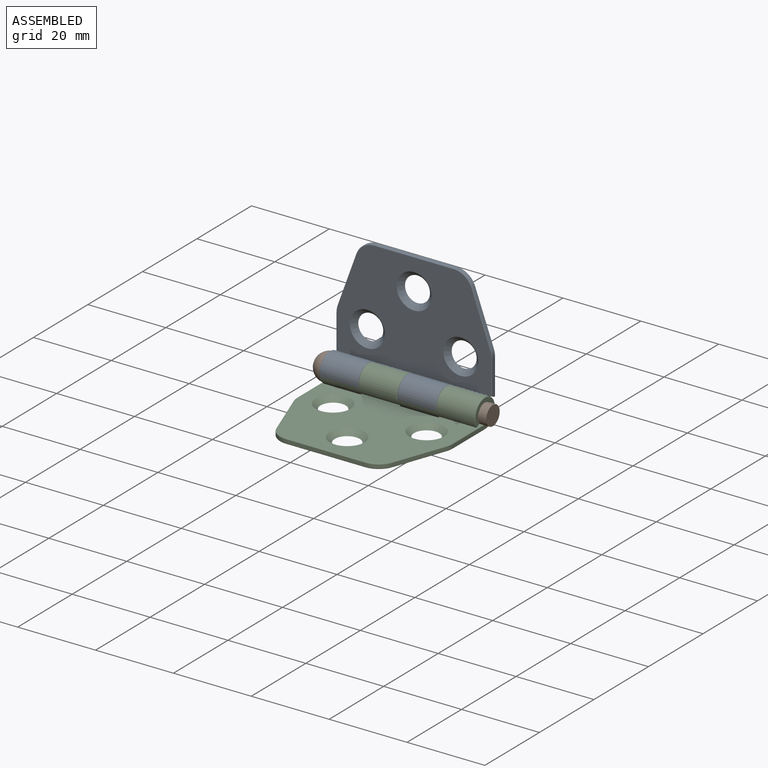
[diagram: assembled view]
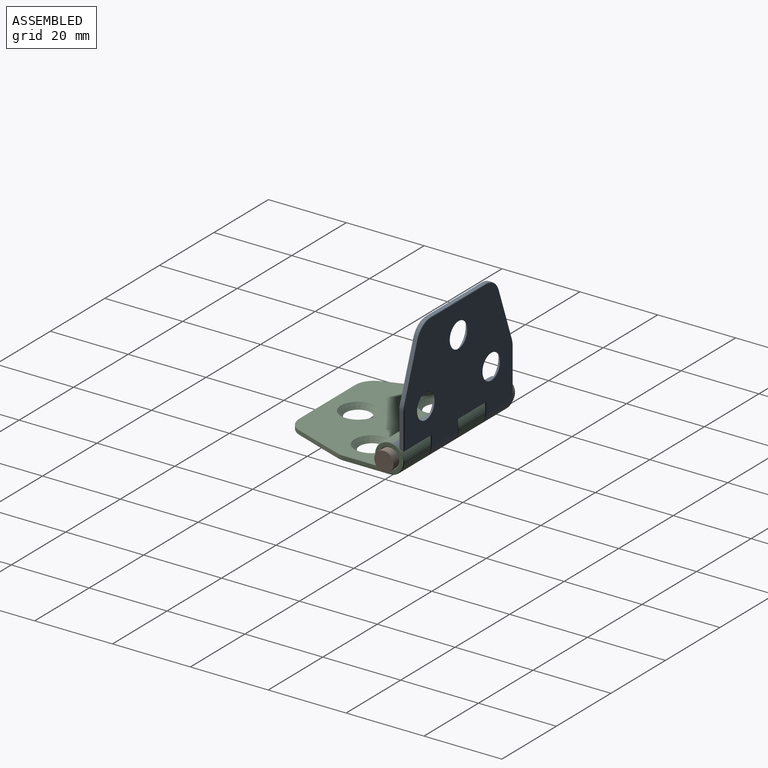
[diagram: assembled view, second angle]
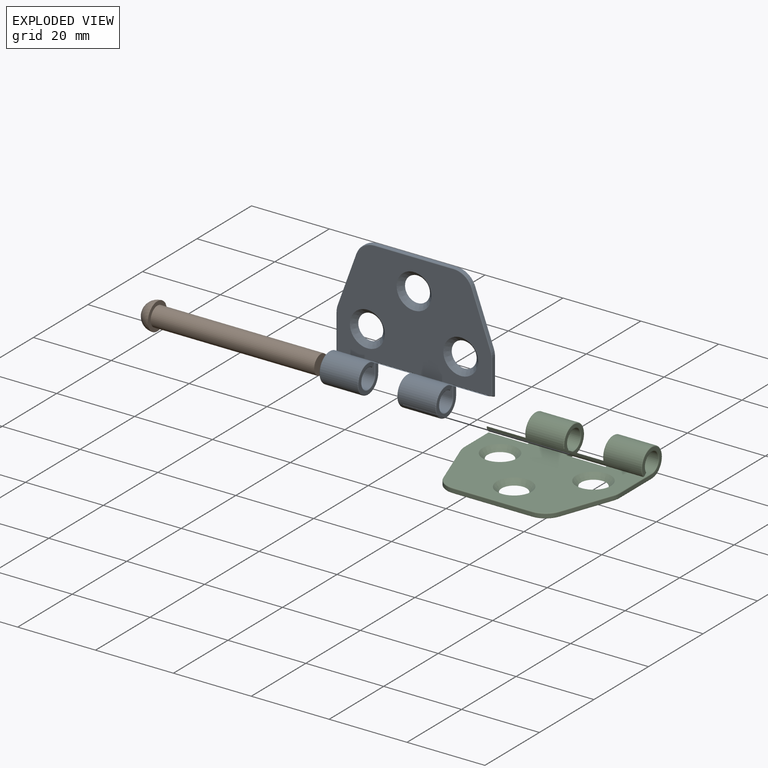
[diagram: exploded view]
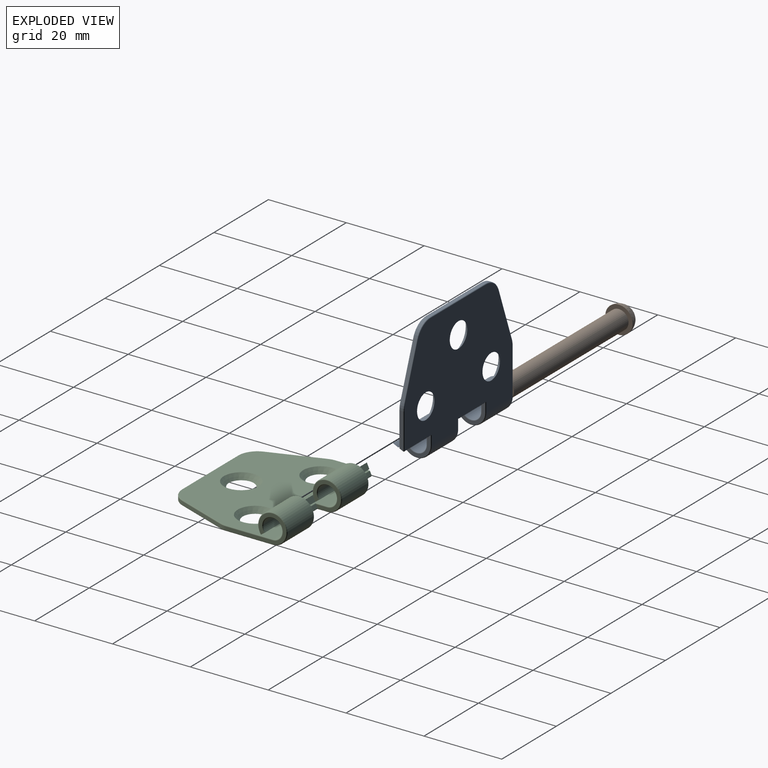
[diagram: exploded view, second angle]
ASSEMBLY  parts=3 mates=2
PART A: 65 faces, bbox 40.2x34.5x8.1 mm
  f0: cylinder r=2.48mm len=9.6mm, axis (-1,0,0), area 127.2mm2, adj f1,f4,f32,f59
  f1: plane 39.6x29.8mm, normal (0,0,1), area 818mm2, adj f0,f7,f11,f12,f13,f26,f27,f28
  f2: plane 39.6x29.8mm, normal (0,0,-1), area 918.2mm2, adj f3,f11,f12,f13,f39,f41,f44,f45
  f3: cylinder r=3.75mm len=39.76mm, axis (-1,0,0), area 416.3mm2, adj f2,f4,f15,f18,f36,f53,f54,f57
  f4: plane 39.85x1.03mm, normal (0,0.59,-0.81), area 25.5mm2, adj f0,f3,f7,f8,f15,f16,f18,f19
  f5: plane 20.4x0.87mm, normal (0,-1,0), area 17.8mm2, adj f21,f24,f30,f48
  f6: plane 9.18x0.87mm, normal (-1,0,0), area 7.8mm2, adj f22,f38,f42,f44
  f7: cylinder r=2.48mm len=9.6mm, axis (-1,0,0), area 127.2mm2, adj f1,f4,f25,f62
  f8: plane 15.37x7.1mm, normal (1,0,0), area 24.8mm2, adj f4,f23,f25,f26,f52,f53
  f9: plane 13.18x4.8mm, normal (0.94,-0.34,0), area 12.2mm2, adj f23,f24,f28,f50
  f10: plane 13.18x4.8mm, normal (-0.94,-0.34,0), area 12.2mm2, adj f21,f22,f33,f46
  f11: cone r=2.2mm half-angle=45deg, axis (0,0,1), area 43.4mm2, adj f1,f2
  f12: cone r=2.2mm half-angle=45deg, axis (0,0,1), area 43.4mm2, adj f1,f2
  f13: cone r=2.2mm half-angle=45deg, axis (0,0,1), area 43.4mm2, adj f1,f2
  f14: plane 9.82x0.87mm, normal (0,0.91,0.41), area 9.4mm2, adj f16,f34,f37,f41,f42
  f15: plane 10x1.4mm, normal (0,0.91,0.41), area 15.1mm2, adj f3,f4,f36,f64
  f16: plane 7.1x7.1mm, normal (-1,0,0), area 16.7mm2, adj f4,f14,f32,f34,f36,f39,f41
  f17: plane 10.04x0.87mm, normal (0,0.91,0.41), area 9.6mm2, adj f19,f20,f56,f60,f61,f63
  f18: plane 10.4x1.4mm, normal (0,0.91,0.41), area 15.6mm2, adj f3,f4,f54,f57
  f19: plane 7.1x7.1mm, normal (-1,0,0), area 16.7mm2, adj f4,f17,f56,f57,f58,f62,f63
  f20: plane 7.1x7.1mm, normal (1,0,0), area 16.7mm2, adj f4,f17,f54,f55,f56,f59,f60
  f21: cylinder r=5mm len=4.7mm, axis (0,0,-1), area 5.3mm2, adj f5,f10,f31,f47
  f22: cylinder r=5mm len=1.71mm, axis (0,0,1), area 1.5mm2, adj f6,f10,f35,f45
  f23: cylinder r=5mm len=1.71mm, axis (0,0,-1), area 1.5mm2, adj f8,f9,f27,f51
  f24: cylinder r=5mm len=4.7mm, axis (0,0,1), area 5.3mm2, adj f5,f9,f29,f49
  f25: torus R=2.68mm, axis (1,0,0), area 4.3mm2, adj f4,f7,f8,f26
  f26: cylinder r=0.2mm len=11.82mm, axis (0,1,0), area 3.7mm2, adj f1,f8,f25,f27
  f27: torus R=4.8mm, axis (0,0,1), area 0.5mm2, adj f1,f23,f26,f28
  f28: cylinder r=0.2mm len=13.25mm, axis (0.34,0.94,0), area 4.4mm2, adj f1,f9,f27,f29
  f29: torus R=4.8mm, axis (0,0,1), area 1.9mm2, adj f1,f24,f28,f30
  f30: cylinder r=0.2mm len=20.4mm, axis (-1,0,0), area 6.4mm2, adj f1,f5,f29,f31
  f31: torus R=4.8mm, axis (0,0,1), area 1.9mm2, adj f1,f21,f30,f33
  f32: torus R=2.68mm, axis (1,0,0), area 4.3mm2, adj f0,f4,f16,f34
  f33: cylinder r=0.2mm len=13.25mm, axis (0.34,-0.94,0), area 4.4mm2, adj f1,f10,f31,f35
  f34: cylinder r=0.2mm len=3.03mm, axis (0,-1,0), area 0.9mm2, adj f1,f14,f16,f32,f37
  f35: torus R=4.8mm, axis (0,0,1), area 0.5mm2, adj f1,f22,f33,f38
  f36: torus R=3.55mm, axis (1,0,0), area 5.9mm2, adj f3,f4,f15,f16,f39
  f37: cylinder r=0.2mm len=10mm, axis (-1,0,0), area 2.3mm2, adj f1,f14,f34,f40
  f38: cylinder r=0.2mm len=8.79mm, axis (0,-1,0), area 2.8mm2, adj f1,f6,f35,f40
  f39: cylinder r=0.2mm len=2.63mm, axis (0,1,0), area 0.8mm2, adj f2,f16,f36,f41
  f40: sphere r=0.2mm, area 0mm2, adj f37,f38,f42
  f41: cylinder r=0.2mm len=10mm, axis (1,0,0), area 3.9mm2, adj f2,f14,f16,f39,f43
  f42: cylinder r=0.2mm len=0.95mm, axis (0,-0.41,0.91), area 0.3mm2, adj f6,f14,f40,f43
  f43: sphere r=0.2mm, area 0.1mm2, adj f41,f42,f44
  f44: cylinder r=0.2mm len=9.18mm, axis (0,1,0), area 2.9mm2, adj f2,f6,f43,f45
  f45: torus R=4.8mm, axis (0,0,1), area 0.5mm2, adj f2,f22,f44,f46
  f46: cylinder r=0.2mm len=13.25mm, axis (-0.34,0.94,0), area 4.4mm2, adj f2,f10,f45,f47
  f47: torus R=4.8mm, axis (0,0,1), area 1.9mm2, adj f2,f21,f46,f48
  f48: cylinder r=0.2mm len=20.4mm, axis (1,0,0), area 6.4mm2, adj f2,f5,f47,f49
  f49: torus R=4.8mm, axis (0,0,1), area 1.9mm2, adj f2,f24,f48,f50
  f50: cylinder r=0.2mm len=13.25mm, axis (-0.34,-0.94,0), area 4.4mm2, adj f2,f9,f49,f51
  f51: torus R=4.8mm, axis (0,0,1), area 0.5mm2, adj f2,f23,f50,f52
  f52: cylinder r=0.2mm len=11.82mm, axis (0,-1,0), area 3.7mm2, adj f2,f8,f51,f53
  f53: torus R=3.55mm, axis (1,0,0), area 6.2mm2, adj f3,f4,f8,f52
  f54: torus R=3.55mm, axis (1,0,0), area 5.9mm2, adj f3,f4,f18,f20,f55
  f55: cylinder r=0.2mm len=2.63mm, axis (0,-1,0), area 0.8mm2, adj f2,f20,f54,f56
  f56: cylinder r=0.2mm len=10.4mm, axis (1,0,0), area 4mm2, adj f2,f17,f19,f20,f55,f58
  f57: torus R=3.55mm, axis (1,0,0), area 5.9mm2, adj f3,f4,f18,f19,f58
  f58: cylinder r=0.2mm len=2.63mm, axis (0,1,0), area 0.8mm2, adj f2,f19,f56,f57
  f59: torus R=2.68mm, axis (1,0,0), area 4.3mm2, adj f0,f4,f20,f60
  f60: cylinder r=0.2mm len=3.03mm, axis (0,1,0), area 0.9mm2, adj f1,f17,f20,f59,f61
  f61: cylinder r=0.2mm len=10.4mm, axis (-1,0,0), area 2.3mm2, adj f1,f17,f60,f63
  f62: torus R=2.68mm, axis (1,0,0), area 4.3mm2, adj f4,f7,f19,f63
  f63: cylinder r=0.2mm len=3.03mm, axis (0,-1,0), area 0.9mm2, adj f1,f17,f19,f61,f62
  f64: cylinder r=0.2mm len=1.43mm, axis (0,-0.41,0.91), area 0.2mm2, adj f3,f4,f15
PART B: 4 faces, bbox 45.5x7x7 mm
  f0: cylinder r=2.48mm len=42mm, axis (-1,0,0), area 653.1mm2, adj f1,f3
  f1: plane 4.95x4.95mm, normal (1,0,0), area 19.2mm2, adj f0
  f2: sphere r=3.5mm, area 77mm2, adj f3
  f3: plane 7x7mm, normal (1,0,0), area 19.2mm2, adj f0,f2
PART C: same geometry as A
PLACE A rot(axis=(0,-0.71,0.71),180deg) t=(19.64,18.61,15.2)mm
PLACE B t=(-20.36,14.86,2.5)mm
PLACE C t=(-20.36,2.14,-1.27)mm
MATE fastened B.f0 <-> A.f0  axis (-1,0,0) through (-20.36,14.86,2.5)mm
MATE revolute C.f16 <-> A.f19  axis (-1,0,0) through (-10.36,14.87,2.47)mm
